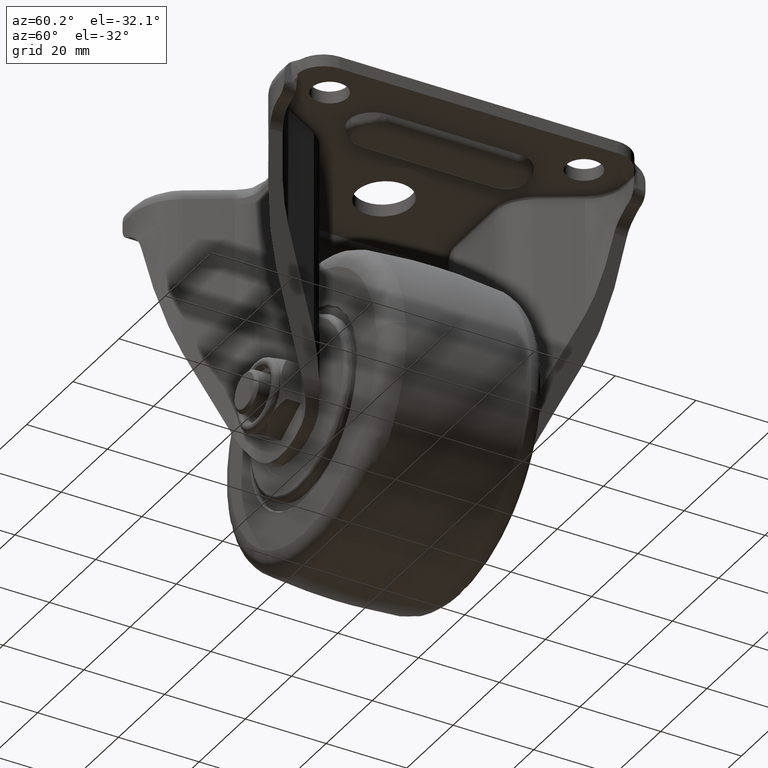
[diagram: clean part render]
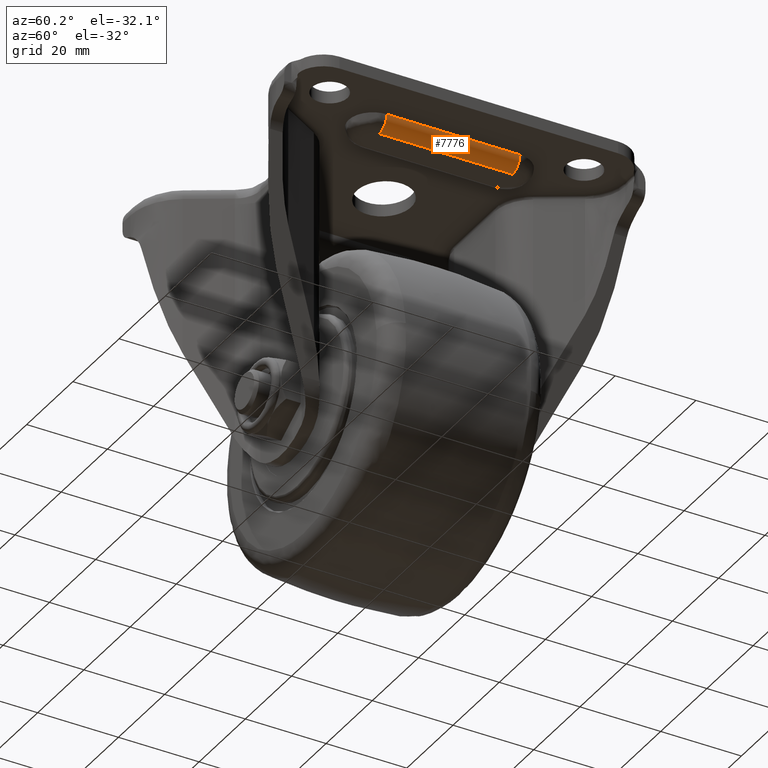
[diagram: same view with one face highlighted and labeled with its STEP entity id]
A machine part, auxiliary view. The second image highlights one B-rep face of the part: STEP entity #7776.
In plain terms, the highlighted face is a freeform B-spline surface patch.
Its self-contained STEP definition (entity closure, byte-faithful):
#7172=CARTESIAN_POINT('',(26.800000000000001,16.500000000000000,56.299999999999997));
#7173=VERTEX_POINT('',#7172);
#7174=CARTESIAN_POINT('',(26.800000000000001,-16.500000000000000,56.299999999999997));
#7175=VERTEX_POINT('',#7174);
#7176=CARTESIAN_POINT('',(26.800000000000001,16.500000000000000,56.299999999999997));
#7177=CARTESIAN_POINT('',(26.800000000000001,-16.500000000000000,56.299999999999997));
#7178=QUASI_UNIFORM_CURVE('',1,(#7176,#7177),.UNSPECIFIED.,.F.,.U.);
#7179=EDGE_CURVE('',#7173,#7175,#7178,.T.);
#7642=CARTESIAN_POINT('',(30.0,-16.500000000000000,59.500000000000000));
#7643=VERTEX_POINT('',#7642);
#7644=CARTESIAN_POINT('',(26.800000000000001,-16.500000000000000,56.299999999999997));
#7645=CARTESIAN_POINT('',(27.087979249599350,-16.499999999999989,56.299939390710442));
#7646=CARTESIAN_POINT('',(27.716298685767882,-16.500000000000028,56.385282078206430));
#7647=CARTESIAN_POINT('',(28.560041221285100,-16.499999999999950,56.771645548084180));
#7648=CARTESIAN_POINT('',(29.173452975568310,-16.500000000000060,57.314319502325510));
#7649=CARTESIAN_POINT('',(29.604474093458929,-16.500000000000021,57.910601566742201));
#7650=CARTESIAN_POINT('',(29.914478568010150,-16.499999999999840,58.609940262822157));
#7651=CARTESIAN_POINT('',(30.000141998016151,-16.500000000000139,59.185824887245793));
#7652=CARTESIAN_POINT('',(30.0,-16.500000000000000,59.500000000000000));
#7653=B_SPLINE_CURVE_WITH_KNOTS('',3,(#7644,#7645,#7646,#7647,#7648,#7649,#7650,#7651,#7652),.UNSPECIFIED.,.F.,.U.,(4,1,1,1,1,1,4),(0.000000393329096,0.863961656885975,1.885026901875842,2.748907489219499,3.298722802048468,4.084176073165368,5.026674381906140),.UNSPECIFIED.);
#7654=EDGE_CURVE('',#7175,#7643,#7653,.T.);
#7739=CARTESIAN_POINT('',(26.660417960430930,-17.324999999999999,56.303045690938063));
#7740=CARTESIAN_POINT('',(26.660417960430930,17.345624999999998,56.303045690938063));
#7741=CARTESIAN_POINT('',(30.243392846268932,-17.324999999999992,56.146609629004843));
#7742=CARTESIAN_POINT('',(30.243392846268932,17.345624999999998,56.146609629004843));
#7743=CARTESIAN_POINT('',(29.992137322342149,-17.324999999999996,59.724185894539289));
#7744=CARTESIAN_POINT('',(29.992137322342149,17.345624999999998,59.724185894539289));
#7752=(BOUNDED_SURFACE()B_SPLINE_SURFACE(1,2,((#7739,#7741,#7743),(#7740,#7742,#7744)),.UNSPECIFIED.,.F.,.F.,.U.)B_SPLINE_SURFACE_WITH_KNOTS((2,2),(3,3),(0.0,34.670625000000001),(0.0,5.733576127494373),.UNSPECIFIED.)GEOMETRIC_REPRESENTATION_ITEM()RATIONAL_B_SPLINE_SURFACE(((1.0,0.664513898535122,0.996233561259061),(1.0,0.664513898535122,0.996233561259061)))REPRESENTATION_ITEM('')SURFACE());
#7753=CARTESIAN_POINT('',(30.0,16.500000000000000,59.500000000000000));
#7754=VERTEX_POINT('',#7753);
#7755=CARTESIAN_POINT('',(26.800000000000001,16.500000000000000,56.299999999999997));
#7756=CARTESIAN_POINT('',(27.087979249599350,16.499999999999989,56.299939390710442));
#7757=CARTESIAN_POINT('',(27.716298685767882,16.500000000000028,56.385282078206430));
#7758=CARTESIAN_POINT('',(28.560041221285100,16.499999999999950,56.771645548084180));
#7759=CARTESIAN_POINT('',(29.173452975568310,16.500000000000060,57.314319502325510));
#7760=CARTESIAN_POINT('',(29.604474093458929,16.500000000000021,57.910601566742201));
#7761=CARTESIAN_POINT('',(29.914478568010150,16.499999999999840,58.609940262822157));
#7762=CARTESIAN_POINT('',(30.000141998016151,16.500000000000139,59.185824887245793));
#7763=CARTESIAN_POINT('',(30.0,16.500000000000000,59.500000000000000));
#7764=B_SPLINE_CURVE_WITH_KNOTS('',3,(#7755,#7756,#7757,#7758,#7759,#7760,#7761,#7762,#7763),.UNSPECIFIED.,.F.,.U.,(4,1,1,1,1,1,4),(0.000000393329096,0.863961656885975,1.885026901875842,2.748907489219499,3.298722802048468,4.084176073165368,5.026674381906140),.UNSPECIFIED.);
#7765=EDGE_CURVE('',#7173,#7754,#7764,.T.);
#7766=ORIENTED_EDGE('',*,*,#7765,.T.);
#7767=CARTESIAN_POINT('',(30.0,16.500000000000000,59.500000000000000));
#7768=CARTESIAN_POINT('',(30.0,-16.500000000000000,59.500000000000000));
#7769=QUASI_UNIFORM_CURVE('',1,(#7767,#7768),.UNSPECIFIED.,.F.,.U.);
#7770=EDGE_CURVE('',#7754,#7643,#7769,.T.);
#7771=ORIENTED_EDGE('',*,*,#7770,.T.);
#7772=ORIENTED_EDGE('',*,*,#7654,.F.);
#7773=ORIENTED_EDGE('',*,*,#7179,.F.);
#7774=EDGE_LOOP('',(#7766,#7771,#7772,#7773));
#7775=FACE_OUTER_BOUND('',#7774,.T.);
#7776=ADVANCED_FACE('',(#7775),#7752,.T.);